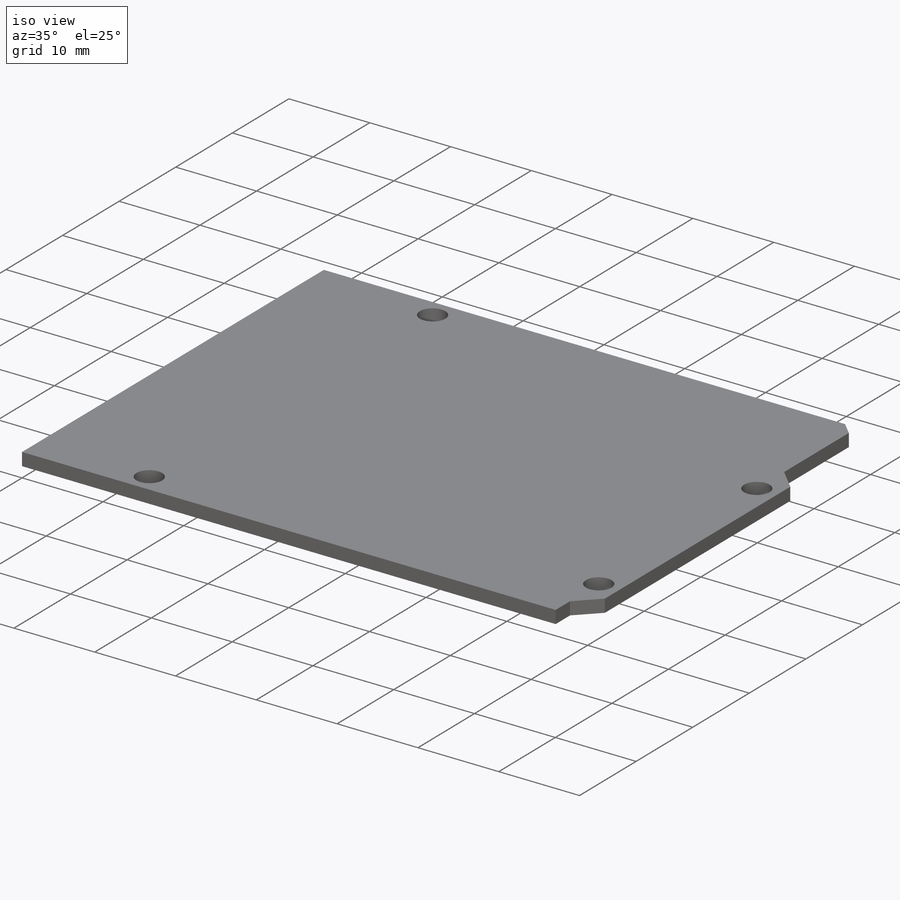
[diagram: iso view]
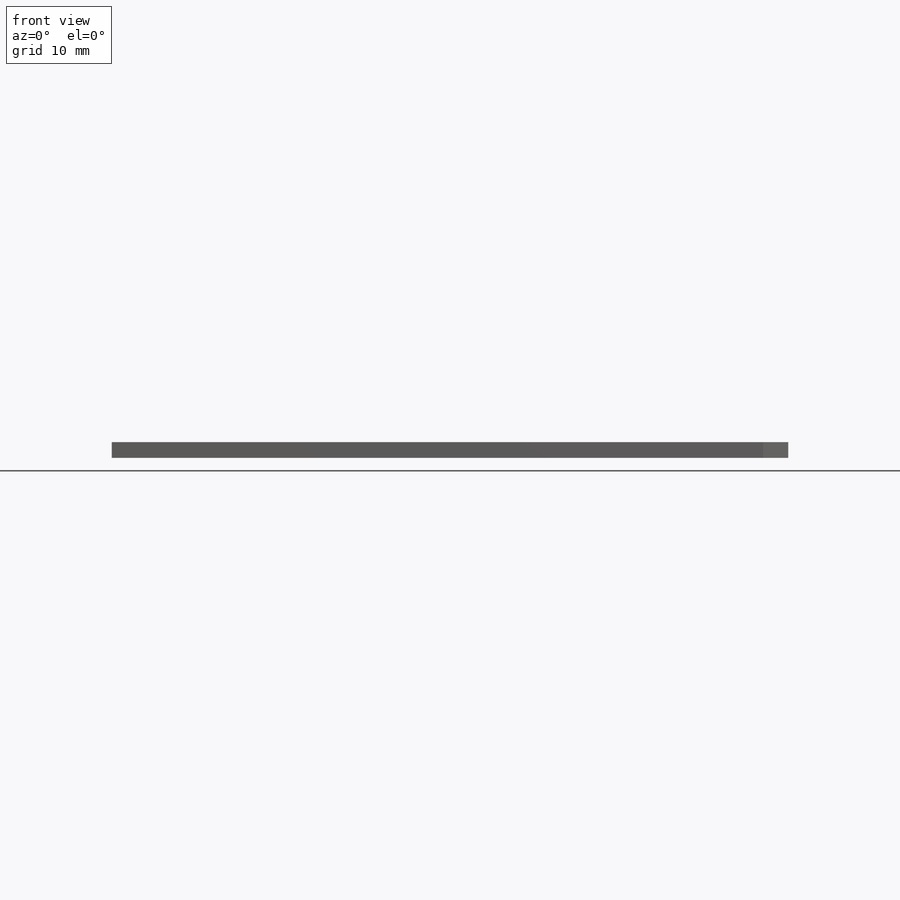
[diagram: front view]
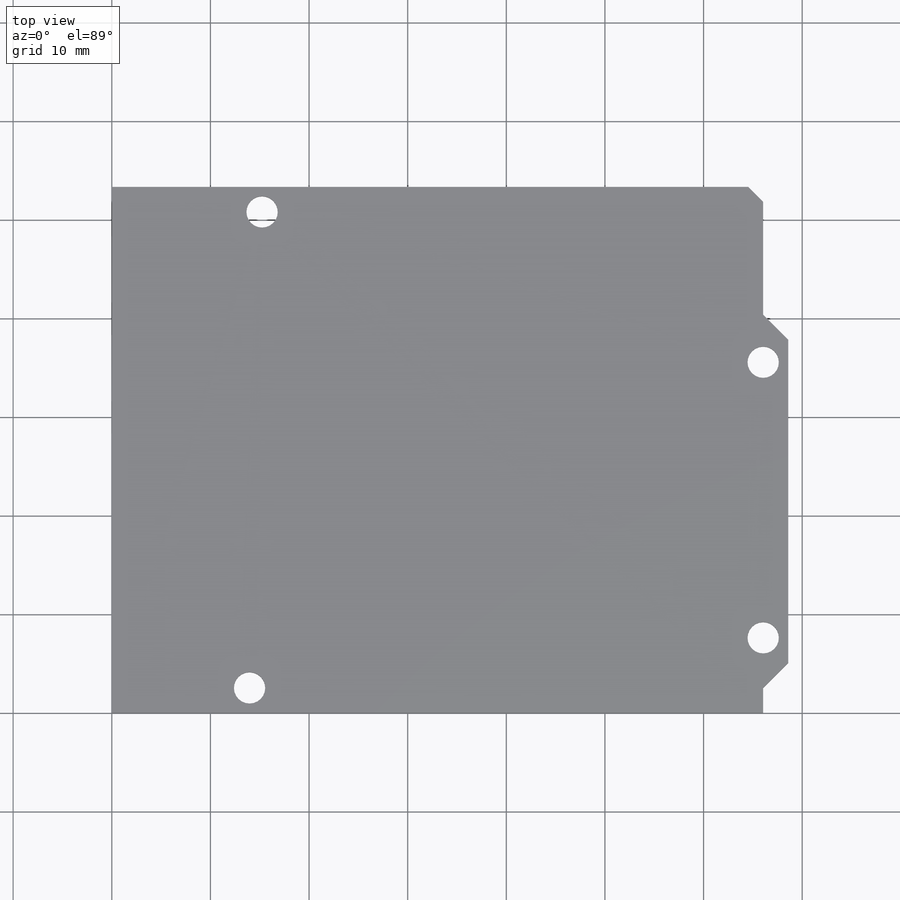
[diagram: top view]
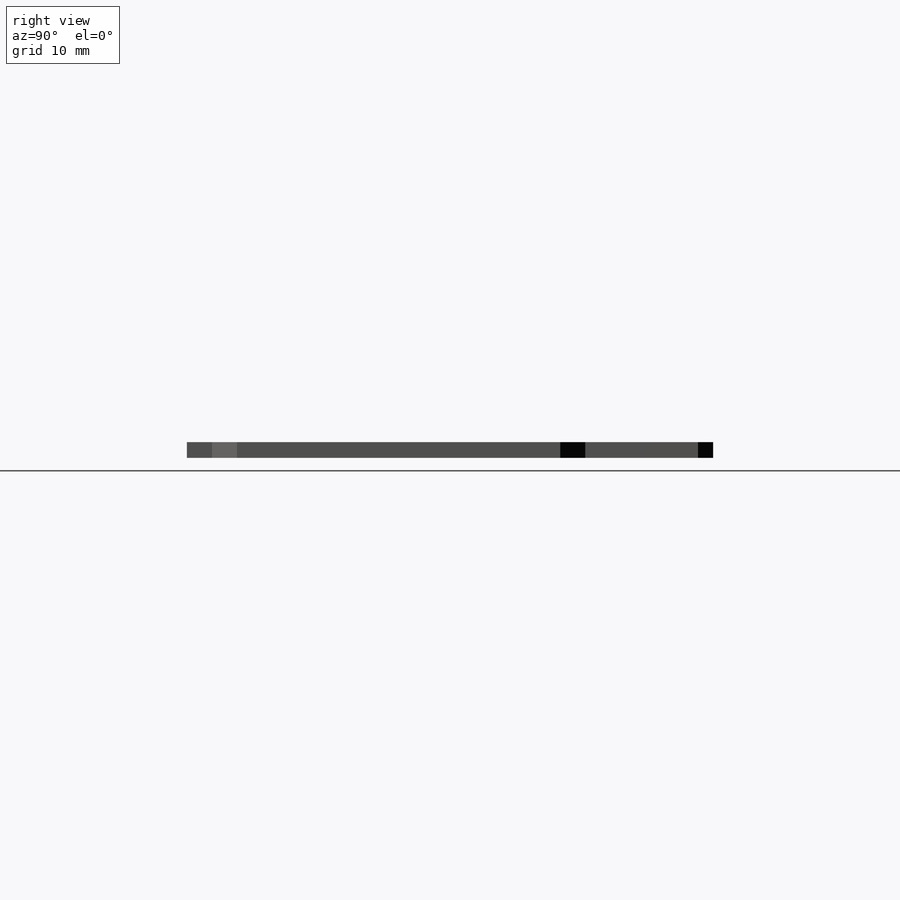
[diagram: right view]
SOLIDWORKS PART (.sldprt)
format: sldprt  version: not decoded by parser v0  size: 182,784 bytes
history: native  units: mm
features: sketch x3, material x1, extrude x1, hole x1 (+12 scaffold rows collapsed)
feature tree (18):
  scaffold x12  (default folders/planes/origin — collapsed)
  material  "FR-4 Fiberglass"
  sketch  "Sketch1"  dims[D1=53.34mm D2=64.516mm D3=66.04mm D4=66.04mm D5=68.58mm D6=51.816mm D7=40.386mm D8=37.846mm D9=5.08mm]
  extrude  "Boss-Extrude1"  Depth=1.5875mm
  hole  "1/8 (0.125) Diameter Hole1"  Diameter=3.175mm Depth=1.5875mm
  sketch  "Sketch3"  dims[D1=2.54mm D2=13.97mm D3=50.8mm D4=15.24mm D5=66.04mm D6=35.56mm D7=7.62mm]
  sketch  "Sketch2"  dims[hole-wizard template sketch: 60 standard entries collapsed; hole parameters kept: c18.Thru Hole Depth=1.5875mm]
decode coverage: 5 of 5 modeling features carry decoded parameters
note: ~ marks probable driven/reference dimensions
note: suppression state not decoded; provenance and decode notes live in map.json
